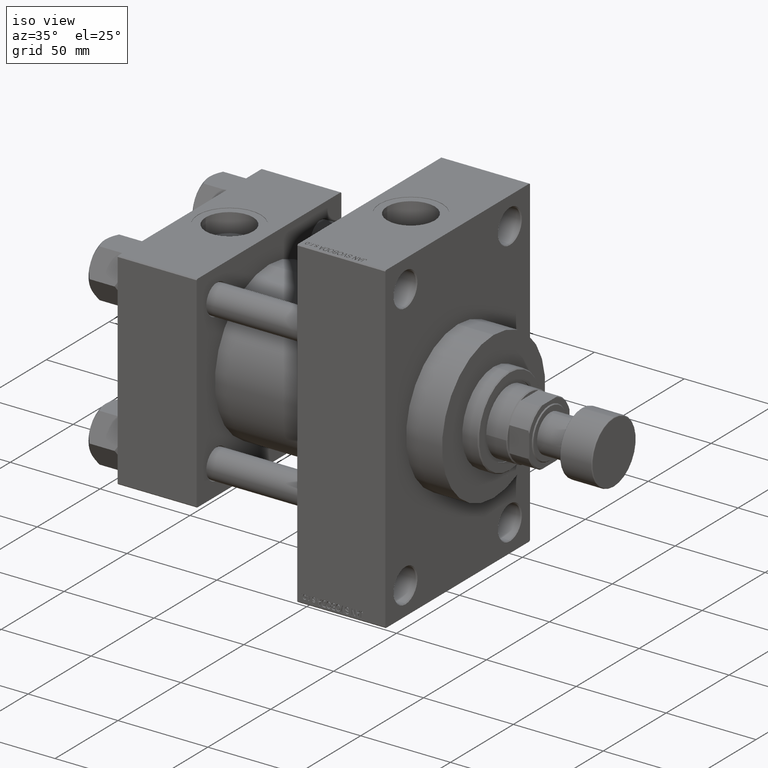
[diagram: clean part render]
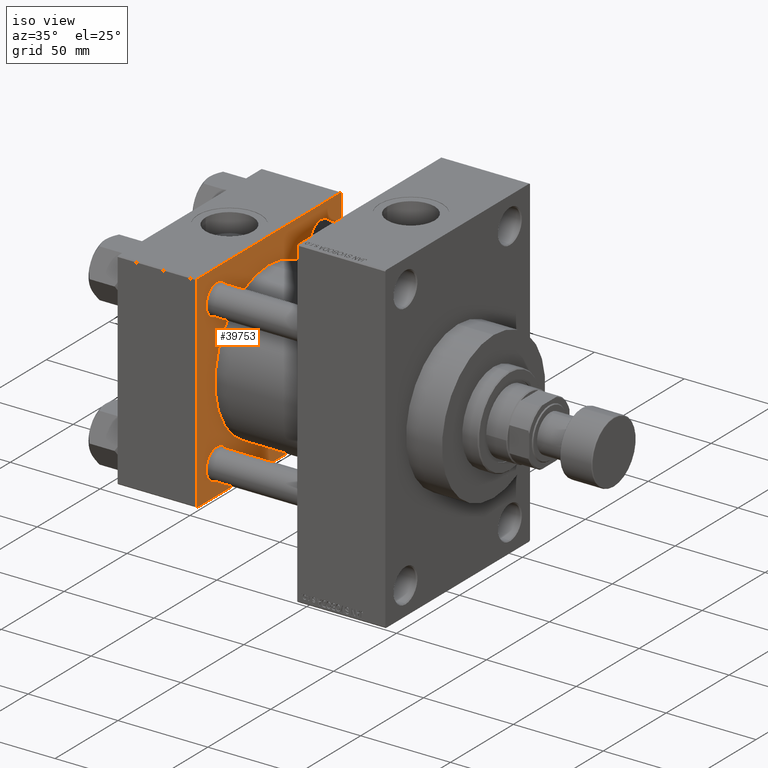
[diagram: same view with one face highlighted and labeled with its STEP entity id]
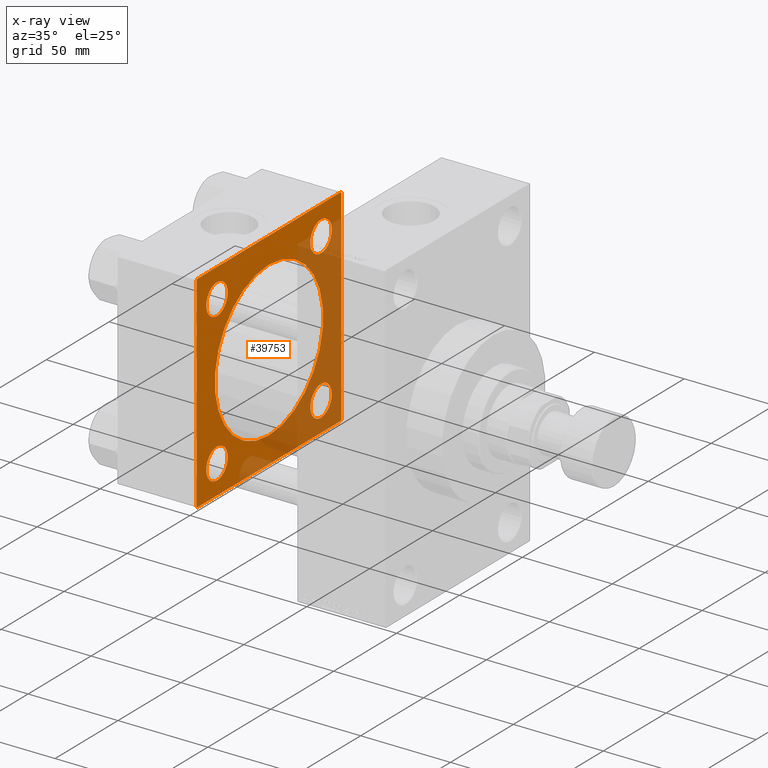
[diagram: x-ray of the same camera — body ghosted, the highlighted face saturated]
A machine part, iso view. The second image highlights one B-rep face of the part: STEP entity #39753.
The next image is the same camera in x-ray: the body ghosted, the highlighted face saturated — about 40% of this face is hidden behind the body in this view.
In plain terms, the highlighted planar face has unit normal (-1, 0, 0).
Its self-contained STEP definition (entity closure, byte-faithful):
#691 = ORIENTED_EDGE ( 'NONE', *, *, #32979, .T. ) ;
#857 = DIRECTION ( 'NONE',  ( 0.000000000000000000, 0.000000000000000000, 1.000000000000000000 ) ) ;
#1092 = CARTESIAN_POINT ( 'NONE',  ( 44.00000000000000000, -41.34999999999998721, -41.35000000000000853 ) ) ;
#1165 = VECTOR ( 'NONE', #47946, 1000.000000000000114 ) ;
#1243 = DIRECTION ( 'NONE',  ( 0.000000000000000000, 0.000000000000000000, -1.000000000000000000 ) ) ;
#1409 = CARTESIAN_POINT ( 'NONE',  ( 44.00000000000000000, 41.34999999999999432, 32.85000000000005116 ) ) ;
#1412 = DIRECTION ( 'NONE',  ( -1.000000000000000000, 0.000000000000000000, -0.000000000000000000 ) ) ;
#1688 = ORIENTED_EDGE ( 'NONE', *, *, #37162, .T. ) ;
#1799 = FACE_BOUND ( 'NONE', #41326, .T. ) ;
#2268 = VECTOR ( 'NONE', #41133, 1000.000000000000114 ) ;
#2428 = EDGE_CURVE ( 'NONE', #44754, #17938, #17873, .T. ) ;
#2508 = VECTOR ( 'NONE', #44195, 1000.000000000000114 ) ;
#2854 = DIRECTION ( 'NONE',  ( 0.000000000000000000, 0.000000000000000000, 1.000000000000000000 ) ) ;
#3436 = DIRECTION ( 'NONE',  ( -0.000000000000000000, -0.7071067811865376918, -0.7071067811865573427 ) ) ;
#3531 = EDGE_CURVE ( 'NONE', #16355, #44408, #40418, .T. ) ;
#4339 = AXIS2_PLACEMENT_3D ( 'NONE', #23915, #19091, #33928 ) ;
#4653 = CARTESIAN_POINT ( 'NONE',  ( 44.00000000000000000, 57.49999999999999289, 57.50000000000000711 ) ) ;
#4865 = VERTEX_POINT ( 'NONE', #33667 ) ;
#5193 = VECTOR ( 'NONE', #27219, 1000.000000000000000 ) ;
#5545 = CARTESIAN_POINT ( 'NONE',  ( 44.00000000000000000, -41.34999999999998721, -41.35000000000000853 ) ) ;
#6015 = DIRECTION ( 'NONE',  ( 0.000000000000000000, 0.000000000000000000, 1.000000000000000000 ) ) ;
#6121 = EDGE_CURVE ( 'NONE', #20130, #11639, #22413, .T. ) ;
#6199 = VERTEX_POINT ( 'NONE', #42613 ) ;
#6405 = DIRECTION ( 'NONE',  ( 1.000000000000000000, -0.000000000000000000, 0.000000000000000000 ) ) ;
#6923 = VERTEX_POINT ( 'NONE', #38465 ) ;
#7325 = ORIENTED_EDGE ( 'NONE', *, *, #33642, .T. ) ;
#7327 = LINE ( 'NONE', #29458, #11388 ) ;
#8490 = DIRECTION ( 'NONE',  ( -1.000000000000000000, 0.000000000000000000, -0.000000000000000000 ) ) ;
#8850 = FACE_BOUND ( 'NONE', #37422, .T. ) ;
#9448 = CIRCLE ( 'NONE', #36644, 8.499999999999952038 ) ;
#9685 = AXIS2_PLACEMENT_3D ( 'NONE', #22509, #37597, #40786 ) ;
#10267 = ORIENTED_EDGE ( 'NONE', *, *, #18921, .T. ) ;
#10479 = CARTESIAN_POINT ( 'NONE',  ( 44.00000000000000000, -57.50000000000000711, -57.00000000000000711 ) ) ;
#10533 = CARTESIAN_POINT ( 'NONE',  ( 44.00000000000000000, -2.602085213965210642E-15, 0.000000000000000000 ) ) ;
#10851 = EDGE_CURVE ( 'NONE', #20130, #31962, #26268, .T. ) ;
#11388 = VECTOR ( 'NONE', #3436, 1000.000000000000114 ) ;
#11639 = VERTEX_POINT ( 'NONE', #41494 ) ;
#11766 = ORIENTED_EDGE ( 'NONE', *, *, #22905, .T. ) ;
#11859 = CARTESIAN_POINT ( 'NONE',  ( 44.00000000000000000, 57.00000000000002132, -57.49999999999999289 ) ) ;
#12179 = ORIENTED_EDGE ( 'NONE', *, *, #2428, .T. ) ;
#12557 = EDGE_LOOP ( 'NONE', ( #15570, #12892, #29089, #35561, #38325, #15087, #11766, #10267 ) ) ;
#12892 = ORIENTED_EDGE ( 'NONE', *, *, #27421, .T. ) ;
#13174 = AXIS2_PLACEMENT_3D ( 'NONE', #39602, #20849, #2854 ) ;
#14114 = CARTESIAN_POINT ( 'NONE',  ( 44.00000000000000000, -57.00000000000000711, -57.50000000000000711 ) ) ;
#14429 = DIRECTION ( 'NONE',  ( 0.000000000000000000, 0.000000000000000000, 1.000000000000000000 ) ) ;
#14503 = LINE ( 'NONE', #32493, #2508 ) ;
#14986 = EDGE_CURVE ( 'NONE', #6199, #29529, #30807, .T. ) ;
#15049 = AXIS2_PLACEMENT_3D ( 'NONE', #1092, #30294, #857 ) ;
#15087 = ORIENTED_EDGE ( 'NONE', *, *, #43765, .T. ) ;
#15331 = CARTESIAN_POINT ( 'NONE',  ( 44.00000000000000000, 57.00000000000000711, 57.50000000000000711 ) ) ;
#15570 = ORIENTED_EDGE ( 'NONE', *, *, #42477, .F. ) ;
#15759 = CIRCLE ( 'NONE', #42975, 8.499999999999952038 ) ;
#15804 = CARTESIAN_POINT ( 'NONE',  ( 44.00000000000000000, 57.49999999999999289, -57.49999999999999289 ) ) ;
#16120 = VERTEX_POINT ( 'NONE', #25562 ) ;
#16331 = AXIS2_PLACEMENT_3D ( 'NONE', #5545, #1412, #20615 ) ;
#16355 = VERTEX_POINT ( 'NONE', #47684 ) ;
#17170 = VECTOR ( 'NONE', #39844, 1000.000000000000000 ) ;
#17553 = CARTESIAN_POINT ( 'NONE',  ( 44.00000000000000000, -41.34999999999998721, 41.35000000000000853 ) ) ;
#17873 = CIRCLE ( 'NONE', #13174, 8.499999999999952038 ) ;
#17938 = VERTEX_POINT ( 'NONE', #1409 ) ;
#18186 = ORIENTED_EDGE ( 'NONE', *, *, #14986, .F. ) ;
#18234 = EDGE_CURVE ( 'NONE', #31962, #6923, #30543, .T. ) ;
#18324 = LINE ( 'NONE', #15804, #5193 ) ;
#18588 = ORIENTED_EDGE ( 'NONE', *, *, #28683, .F. ) ;
#18921 = EDGE_CURVE ( 'NONE', #39347, #40450, #18960, .T. ) ;
#18960 = LINE ( 'NONE', #14114, #1165 ) ;
#19028 = CIRCLE ( 'NONE', #9685, 8.499999999999952038 ) ;
#19091 = DIRECTION ( 'NONE',  ( -1.000000000000000000, 0.000000000000000000, -0.000000000000000000 ) ) ;
#19331 = CARTESIAN_POINT ( 'NONE',  ( 44.00000000000000000, 0.000000000000000000, 0.000000000000000000 ) ) ;
#19681 = ORIENTED_EDGE ( 'NONE', *, *, #3531, .T. ) ;
#20040 = DIRECTION ( 'NONE',  ( -1.000000000000000000, 0.000000000000000000, -0.000000000000000000 ) ) ;
#20130 = VERTEX_POINT ( 'NONE', #35173 ) ;
#20615 = DIRECTION ( 'NONE',  ( 0.000000000000000000, 0.000000000000000000, 1.000000000000000000 ) ) ;
#20849 = DIRECTION ( 'NONE',  ( -1.000000000000000000, 0.000000000000000000, -0.000000000000000000 ) ) ;
#21956 = CARTESIAN_POINT ( 'NONE',  ( 44.00000000000000000, -2.602085213965210642E-15, 43.00000000000000000 ) ) ;
#22006 = CIRCLE ( 'NONE', #15049, 8.499999999999952038 ) ;
#22413 = LINE ( 'NONE', #4653, #26399 ) ;
#22509 = CARTESIAN_POINT ( 'NONE',  ( 44.00000000000000000, 41.34999999999999432, 41.35000000000000142 ) ) ;
#22780 = CARTESIAN_POINT ( 'NONE',  ( 44.00000000000000000, -57.50000000000000711, 57.00000000000000711 ) ) ;
#22905 = EDGE_CURVE ( 'NONE', #41873, #39347, #33002, .T. ) ;
#23433 = FACE_OUTER_BOUND ( 'NONE', #12557, .T. ) ;
#23629 = CARTESIAN_POINT ( 'NONE',  ( 44.00000000000000000, -41.34999999999998721, -32.85000000000005826 ) ) ;
#23915 = CARTESIAN_POINT ( 'NONE',  ( 44.00000000000000000, 41.34999999999999432, -41.35000000000000142 ) ) ;
#24480 = CARTESIAN_POINT ( 'NONE',  ( 44.00000000000000000, 41.34999999999999432, -41.35000000000000142 ) ) ;
#25562 = CARTESIAN_POINT ( 'NONE',  ( 44.00000000000000000, -41.34999999999998721, 49.84999999999996589 ) ) ;
#26144 = EDGE_CURVE ( 'NONE', #32227, #16120, #9448, .T. ) ;
#26181 = CARTESIAN_POINT ( 'NONE',  ( 44.00000000000000000, 57.49999999999999289, 57.50000000000000711 ) ) ;
#26197 = ORIENTED_EDGE ( 'NONE', *, *, #26144, .T. ) ;
#26268 = LINE ( 'NONE', #15331, #2268 ) ;
#26270 = CARTESIAN_POINT ( 'NONE',  ( 44.00000000000000000, 41.34999999999999432, -49.84999999999995879 ) ) ;
#26399 = VECTOR ( 'NONE', #1243, 1000.000000000000000 ) ;
#26861 = CIRCLE ( 'NONE', #4339, 8.499999999999952038 ) ;
#27219 = DIRECTION ( 'NONE',  ( 0.000000000000000000, -1.000000000000000000, -1.206764157201257045E-16 ) ) ;
#27421 = EDGE_CURVE ( 'NONE', #36016, #11639, #14503, .T. ) ;
#27671 = CARTESIAN_POINT ( 'NONE',  ( 44.00000000000000000, -41.34999999999998721, 32.85000000000005826 ) ) ;
#28683 = EDGE_CURVE ( 'NONE', #29529, #6199, #40619, .T. ) ;
#29029 = AXIS2_PLACEMENT_3D ( 'NONE', #24480, #39348, #6015 ) ;
#29089 = ORIENTED_EDGE ( 'NONE', *, *, #6121, .F. ) ;
#29092 = VECTOR ( 'NONE', #48122, 1000.000000000000000 ) ;
#29438 = DIRECTION ( 'NONE',  ( 1.000000000000000000, -0.000000000000000000, 0.000000000000000000 ) ) ;
#29458 = CARTESIAN_POINT ( 'NONE',  ( 44.00000000000000000, -57.50000000000000711, 57.00000000000000711 ) ) ;
#29529 = VERTEX_POINT ( 'NONE', #21956 ) ;
#29725 = DIRECTION ( 'NONE',  ( 0.000000000000000000, 0.000000000000000000, 1.000000000000000000 ) ) ;
#30294 = DIRECTION ( 'NONE',  ( -1.000000000000000000, 0.000000000000000000, -0.000000000000000000 ) ) ;
#30399 = CARTESIAN_POINT ( 'NONE',  ( 44.00000000000000000, -57.00000000000000711, -57.50000000000000711 ) ) ;
#30543 = LINE ( 'NONE', #26181, #29092 ) ;
#30807 = CIRCLE ( 'NONE', #44848, 43.00000000000000000 ) ;
#31306 = AXIS2_PLACEMENT_3D ( 'NONE', #10533, #6405, #14429 ) ;
#31962 = VERTEX_POINT ( 'NONE', #33788 ) ;
#32227 = VERTEX_POINT ( 'NONE', #27671 ) ;
#32493 = CARTESIAN_POINT ( 'NONE',  ( 44.00000000000000000, 57.49999999999999289, -57.00000000000000711 ) ) ;
#32979 = EDGE_CURVE ( 'NONE', #16120, #32227, #15759, .T. ) ;
#33002 = LINE ( 'NONE', #40564, #17170 ) ;
#33642 = EDGE_CURVE ( 'NONE', #44408, #16355, #22006, .T. ) ;
#33667 = CARTESIAN_POINT ( 'NONE',  ( 44.00000000000000000, 41.34999999999999432, -32.85000000000005116 ) ) ;
#33788 = CARTESIAN_POINT ( 'NONE',  ( 44.00000000000000000, 57.00000000000000711, 57.50000000000000711 ) ) ;
#33889 = AXIS2_PLACEMENT_3D ( 'NONE', #19331, #20040, #34167 ) ;
#33928 = DIRECTION ( 'NONE',  ( 0.000000000000000000, 0.000000000000000000, 1.000000000000000000 ) ) ;
#34161 = EDGE_CURVE ( 'NONE', #38452, #4865, #36033, .T. ) ;
#34167 = DIRECTION ( 'NONE',  ( -0.000000000000000000, 0.000000000000000000, 1.000000000000000000 ) ) ;
#35173 = CARTESIAN_POINT ( 'NONE',  ( 44.00000000000000000, 57.49999999999999289, 57.00000000000003553 ) ) ;
#35561 = ORIENTED_EDGE ( 'NONE', *, *, #10851, .T. ) ;
#36016 = VERTEX_POINT ( 'NONE', #11859 ) ;
#36024 = DIRECTION ( 'NONE',  ( 0.000000000000000000, 0.000000000000000000, 1.000000000000000000 ) ) ;
#36033 = CIRCLE ( 'NONE', #29029, 8.499999999999952038 ) ;
#36644 = AXIS2_PLACEMENT_3D ( 'NONE', #17553, #40665, #36024 ) ;
#36973 = DIRECTION ( 'NONE',  ( 0.000000000000000000, 0.000000000000000000, 1.000000000000000000 ) ) ;
#37162 = EDGE_CURVE ( 'NONE', #17938, #44754, #19028, .T. ) ;
#37422 = EDGE_LOOP ( 'NONE', ( #39175, #42750 ) ) ;
#37587 = EDGE_LOOP ( 'NONE', ( #26197, #691 ) ) ;
#37597 = DIRECTION ( 'NONE',  ( -1.000000000000000000, 0.000000000000000000, -0.000000000000000000 ) ) ;
#38061 = PLANE ( 'NONE',  #33889 ) ;
#38325 = ORIENTED_EDGE ( 'NONE', *, *, #18234, .T. ) ;
#38452 = VERTEX_POINT ( 'NONE', #26270 ) ;
#38465 = CARTESIAN_POINT ( 'NONE',  ( 44.00000000000000000, -57.00000000000003553, 57.49999999999999289 ) ) ;
#38832 = EDGE_CURVE ( 'NONE', #4865, #38452, #26861, .T. ) ;
#39175 = ORIENTED_EDGE ( 'NONE', *, *, #34161, .T. ) ;
#39347 = VERTEX_POINT ( 'NONE', #10479 ) ;
#39348 = DIRECTION ( 'NONE',  ( -1.000000000000000000, 0.000000000000000000, -0.000000000000000000 ) ) ;
#39602 = CARTESIAN_POINT ( 'NONE',  ( 44.00000000000000000, 41.34999999999999432, 41.35000000000000142 ) ) ;
#39753 = ADVANCED_FACE ( 'NONE', ( #42203, #8850, #42446, #41491, #1799, #23433 ), #38061, .F. ) ;
#39844 = DIRECTION ( 'NONE',  ( 0.000000000000000000, 0.000000000000000000, -1.000000000000000000 ) ) ;
#40418 = CIRCLE ( 'NONE', #16331, 8.499999999999952038 ) ;
#40450 = VERTEX_POINT ( 'NONE', #30399 ) ;
#40564 = CARTESIAN_POINT ( 'NONE',  ( 44.00000000000000000, -57.50000000000000711, 57.49999999999999289 ) ) ;
#40619 = CIRCLE ( 'NONE', #31306, 43.00000000000000000 ) ;
#40665 = DIRECTION ( 'NONE',  ( -1.000000000000000000, 0.000000000000000000, -0.000000000000000000 ) ) ;
#40786 = DIRECTION ( 'NONE',  ( 0.000000000000000000, 0.000000000000000000, 1.000000000000000000 ) ) ;
#41127 = CARTESIAN_POINT ( 'NONE',  ( 44.00000000000000000, -2.602085213965210642E-15, 0.000000000000000000 ) ) ;
#41133 = DIRECTION ( 'NONE',  ( 0.000000000000000000, -0.7071067811865573427, 0.7071067811865376918 ) ) ;
#41326 = EDGE_LOOP ( 'NONE', ( #18588, #18186 ) ) ;
#41491 = FACE_BOUND ( 'NONE', #45752, .T. ) ;
#41494 = CARTESIAN_POINT ( 'NONE',  ( 44.00000000000000000, 57.49999999999999289, -57.00000000000000711 ) ) ;
#41873 = VERTEX_POINT ( 'NONE', #22780 ) ;
#42203 = FACE_BOUND ( 'NONE', #47917, .T. ) ;
#42446 = FACE_BOUND ( 'NONE', #37587, .T. ) ;
#42477 = EDGE_CURVE ( 'NONE', #36016, #40450, #18324, .T. ) ;
#42613 = CARTESIAN_POINT ( 'NONE',  ( 44.00000000000000000, 2.663896022368408223E-15, -43.00000000000000000 ) ) ;
#42750 = ORIENTED_EDGE ( 'NONE', *, *, #38832, .T. ) ;
#42975 = AXIS2_PLACEMENT_3D ( 'NONE', #44592, #8490, #29725 ) ;
#43765 = EDGE_CURVE ( 'NONE', #6923, #41873, #7327, .T. ) ;
#44195 = DIRECTION ( 'NONE',  ( -0.000000000000000000, 0.7071067811865376918, 0.7071067811865573427 ) ) ;
#44408 = VERTEX_POINT ( 'NONE', #23629 ) ;
#44592 = CARTESIAN_POINT ( 'NONE',  ( 44.00000000000000000, -41.34999999999998721, 41.35000000000000853 ) ) ;
#44754 = VERTEX_POINT ( 'NONE', #46071 ) ;
#44848 = AXIS2_PLACEMENT_3D ( 'NONE', #41127, #29438, #36973 ) ;
#45752 = EDGE_LOOP ( 'NONE', ( #1688, #12179 ) ) ;
#46071 = CARTESIAN_POINT ( 'NONE',  ( 44.00000000000000000, 41.34999999999999432, 49.84999999999995879 ) ) ;
#47684 = CARTESIAN_POINT ( 'NONE',  ( 44.00000000000000000, -41.34999999999998721, -49.84999999999996589 ) ) ;
#47917 = EDGE_LOOP ( 'NONE', ( #19681, #7325 ) ) ;
#47946 = DIRECTION ( 'NONE',  ( 0.000000000000000000, 0.7071067811865474617, -0.7071067811865474617 ) ) ;
#48122 = DIRECTION ( 'NONE',  ( 0.000000000000000000, -1.000000000000000000, -1.206764157201257045E-16 ) ) ;